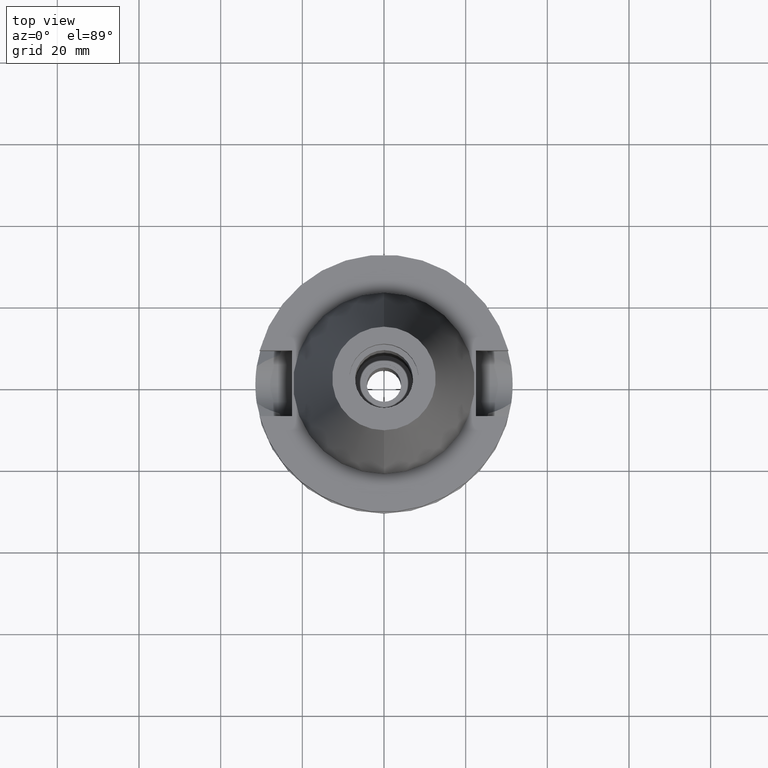
[diagram: clean part render]
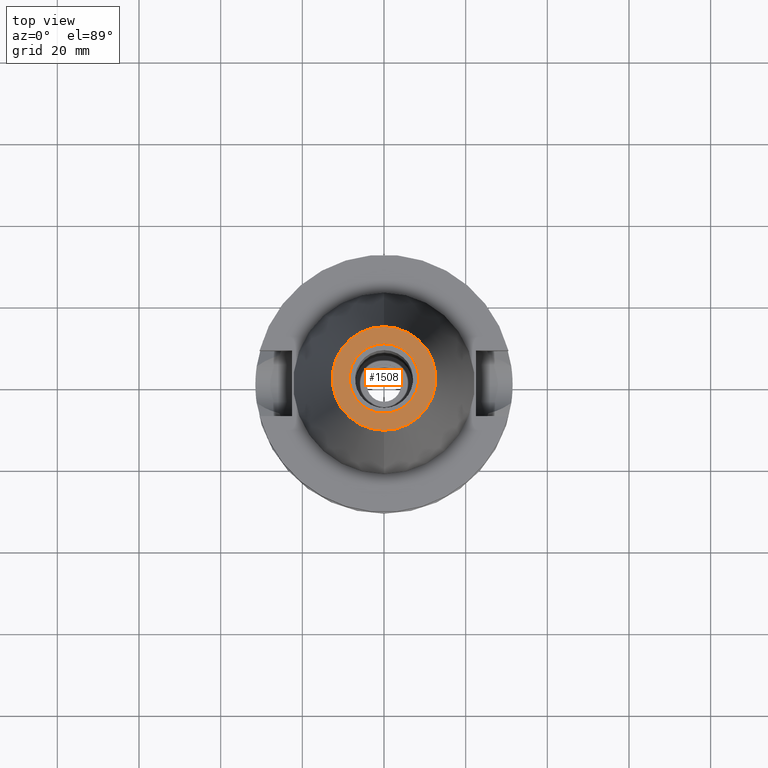
[diagram: same view with one face highlighted and labeled with its STEP entity id]
A machine part, top view. The second image highlights one B-rep face of the part: STEP entity #1508.
In plain terms, the highlighted planar face has unit normal (0, 0, -1).
Its self-contained STEP definition (entity closure, byte-faithful):
#19 = DIRECTION ( 'NONE',  ( 0.0000000000000000000, -1.000000000000000000, 0.0000000000000000000 ) ) ;
#58 = FACE_BOUND ( 'NONE', #995, .T. ) ;
#403 = EDGE_CURVE ( 'NONE', #1111, #3104, #798, .T. ) ;
#486 = ORIENTED_EDGE ( 'NONE', *, *, #1757, .F. ) ;
#627 = CIRCLE ( 'NONE', #1974, 12.68766899429999917 ) ;
#742 = CIRCLE ( 'NONE', #3616, 8.500000000000000000 ) ;
#744 = AXIS2_PLACEMENT_3D ( 'NONE', #1469, #3432, #19 ) ;
#798 = CIRCLE ( 'NONE', #744, 12.68766899429999917 ) ;
#875 = DIRECTION ( 'NONE',  ( 0.0000000000000000000, 0.0000000000000000000, 1.000000000000000000 ) ) ;
#952 = ORIENTED_EDGE ( 'NONE', *, *, #403, .F. ) ;
#985 = CARTESIAN_POINT ( 'NONE',  ( 0.0000000000000000000, 8.500000000000000000, 65.40000000000000568 ) ) ;
#995 = EDGE_LOOP ( 'NONE', ( #486, #3300 ) ) ;
#1074 = DIRECTION ( 'NONE',  ( 0.0000000000000000000, 0.0000000000000000000, 1.000000000000000000 ) ) ;
#1111 = VERTEX_POINT ( 'NONE', #1859 ) ;
#1234 = PLANE ( 'NONE',  #1252 ) ;
#1252 = AXIS2_PLACEMENT_3D ( 'NONE', #1476, #1750, #2328 ) ;
#1469 = CARTESIAN_POINT ( 'NONE',  ( 0.0000000000000000000, 1.625106302469000024E-14, 65.40000000000000568 ) ) ;
#1476 = CARTESIAN_POINT ( 'NONE',  ( 0.0000000000000000000, 2.025565805790000122E-14, 65.40000000000000568 ) ) ;
#1508 = ADVANCED_FACE ( 'NONE', ( #3193, #58 ), #1234, .F. ) ;
#1531 = VERTEX_POINT ( 'NONE', #3445 ) ;
#1701 = DIRECTION ( 'NONE',  ( 0.0000000000000000000, 1.000000000000000000, 0.0000000000000000000 ) ) ;
#1750 = DIRECTION ( 'NONE',  ( 0.0000000000000000000, 0.0000000000000000000, -1.000000000000000000 ) ) ;
#1757 = EDGE_CURVE ( 'NONE', #2566, #1531, #2667, .T. ) ;
#1807 = ORIENTED_EDGE ( 'NONE', *, *, #2561, .F. ) ;
#1818 = CARTESIAN_POINT ( 'NONE',  ( 0.0000000000000000000, 1.625106302469000024E-14, 65.40000000000000568 ) ) ;
#1859 = CARTESIAN_POINT ( 'NONE',  ( 0.0000000000000000000, -12.68766899429999917, 65.40000000000000568 ) ) ;
#1872 = DIRECTION ( 'NONE',  ( 0.0000000000000000000, 0.0000000000000000000, -1.000000000000000000 ) ) ;
#1974 = AXIS2_PLACEMENT_3D ( 'NONE', #1818, #1872, #2639 ) ;
#2273 = CARTESIAN_POINT ( 'NONE',  ( 0.0000000000000000000, 2.117046921685999950E-14, 65.40000000000000568 ) ) ;
#2328 = DIRECTION ( 'NONE',  ( 0.0000000000000000000, -1.000000000000000000, 0.0000000000000000000 ) ) ;
#2342 = EDGE_CURVE ( 'NONE', #1531, #2566, #742, .T. ) ;
#2561 = EDGE_CURVE ( 'NONE', #3104, #1111, #627, .T. ) ;
#2566 = VERTEX_POINT ( 'NONE', #985 ) ;
#2639 = DIRECTION ( 'NONE',  ( 0.0000000000000000000, 1.000000000000000000, 0.0000000000000000000 ) ) ;
#2667 = CIRCLE ( 'NONE', #3602, 8.500000000000000000 ) ;
#3104 = VERTEX_POINT ( 'NONE', #3528 ) ;
#3193 = FACE_OUTER_BOUND ( 'NONE', #3499, .T. ) ;
#3300 = ORIENTED_EDGE ( 'NONE', *, *, #2342, .F. ) ;
#3327 = DIRECTION ( 'NONE',  ( 0.0000000000000000000, -1.000000000000000000, 0.0000000000000000000 ) ) ;
#3432 = DIRECTION ( 'NONE',  ( 0.0000000000000000000, 0.0000000000000000000, -1.000000000000000000 ) ) ;
#3445 = CARTESIAN_POINT ( 'NONE',  ( 0.0000000000000000000, -8.500000000000000000, 65.40000000000000568 ) ) ;
#3499 = EDGE_LOOP ( 'NONE', ( #1807, #952 ) ) ;
#3528 = CARTESIAN_POINT ( 'NONE',  ( 0.0000000000000000000, 12.68766899429999917, 65.40000000000000568 ) ) ;
#3593 = CARTESIAN_POINT ( 'NONE',  ( 0.0000000000000000000, 2.117046921685999950E-14, 65.40000000000000568 ) ) ;
#3602 = AXIS2_PLACEMENT_3D ( 'NONE', #2273, #875, #1701 ) ;
#3616 = AXIS2_PLACEMENT_3D ( 'NONE', #3593, #1074, #3327 ) ;